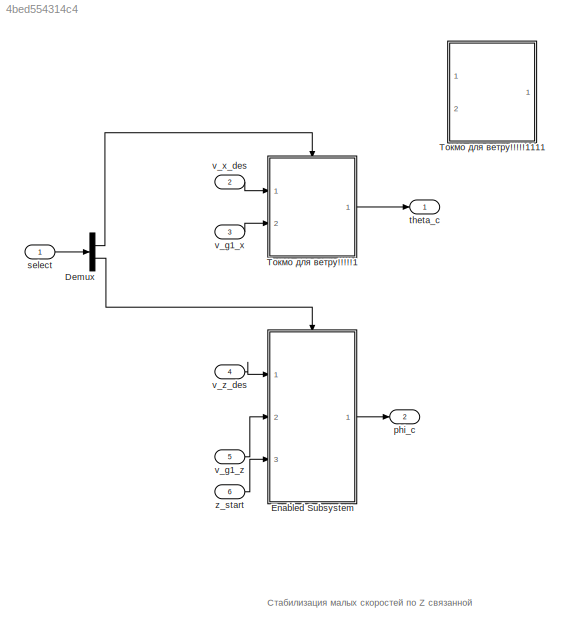
MODEL slx_4bed554314c4
KIND model
CONFIG AbsTol = auto
CONFIG EnableMultiTasking = off
CONFIG FixedStep = auto
CONFIG MaxStep = auto
CONFIG MinStep = auto
CONFIG RelTol = 1e-3
CONFIG SampleTimeConstraint = Unconstrained
CONFIG Solver = VariableStepAuto
CONFIG SolverName = VariableStepAuto
CONFIG StartTime = 0.0
CONFIG StopTime = 10.0
BLOCK [Demux] Demux
  Outputs = 2
  Ports = [1, 2]
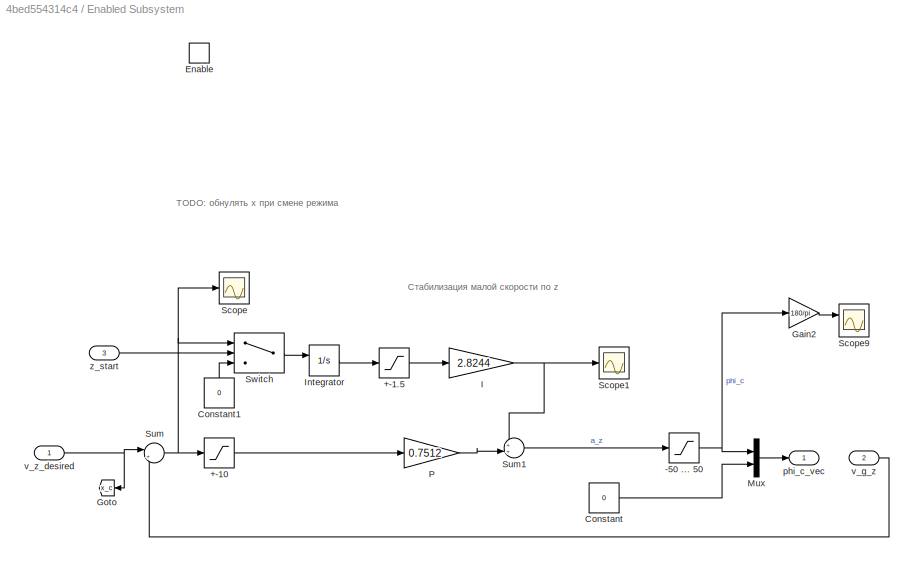
BLOCK [SubSystem] Enabled Subsystem
  Ports = [3, 1, 1]
  RequestExecContextInheritance = off
  TreatAsAtomicUnit = on
BLOCK [Saturate] Enabled Subsystem/+-1.5 
BLOCK [Saturate] Enabled Subsystem/+-10
  Commented = through
  LowerLimit = -10
  UpperLimit = 10
BLOCK [Saturate] Enabled Subsystem/-50 ... 50
  LowerLimit = deg2rad(-50)
  UpperLimit = deg2rad(50)
BLOCK [Constant] Enabled Subsystem/Constant
  Value = 0
BLOCK [Constant] Enabled Subsystem/Constant1
  NameLocation = right
  Value = 0
BLOCK [EnablePort] Enabled Subsystem/Enable
  Ports = []
BLOCK [Gain] Enabled Subsystem/Gain2
  Gain = 180/pi
BLOCK [Goto] Enabled Subsystem/Goto
  GotoTag = x_c
  NameLocation = top
BLOCK [Gain] Enabled Subsystem/I
  Gain = 2.8244
BLOCK [Integrator] Enabled Subsystem/Integrator
  ExternalReset = either
  Ports = [2, 1]
BLOCK [Mux] Enabled Subsystem/Mux
  DisplayOption = bar
  Inputs = 2
  Ports = [2, 1]
BLOCK [Gain] Enabled Subsystem/P
  Gain = 0.7512
BLOCK [Scope] Enabled Subsystem/Scope
  Floating = off
  NumInputPorts = 1
  Ports = [1]
  ScopeSpecificationString = Simulink.scopes.TimeScopeBlockCfg('CurrentConfiguration', extmgr.ConfigurationSet(extmgr.Configuration('Core','General UI',true),extmgr.Configuration('Core','Source UI',true),extmgr.Configuration('Sources','WiredSimulink',true,'DataLoggingVariableName','ScopeData3'),extmgr.Configuration('Visuals','Time Domain',true,'SerializedDisplays',{struct('MinYLimReal','-1.00000','MaxYLimReal','1.00000','YLab...<+1392ch>
BLOCK [Scope] Enabled Subsystem/Scope1
  Floating = off
  NumInputPorts = 1
  Ports = [1]
  ScopeSpecificationString = Simulink.scopes.TimeScopeBlockCfg('CurrentConfiguration', extmgr.ConfigurationSet(extmgr.Configuration('Core','General UI',true),extmgr.Configuration('Core','Source UI',true),extmgr.Configuration('Sources','WiredSimulink',true,'DataLoggingVariableName','ScopeData4'),extmgr.Configuration('Visuals','Time Domain',true,'SerializedDisplays',{struct('MinYLimReal','-0.00921','MaxYLimReal','0.08286','YLab...<+1390ch>
BLOCK [Scope] Enabled Subsystem/Scope9
  Floating = off
  NumInputPorts = 2
  Ports = [2]
  ScopeSpecificationString = Simulink.scopes.TimeScopeBlockCfg('CurrentConfiguration', extmgr.ConfigurationSet(extmgr.Configuration('Core','General UI',true),extmgr.Configuration('Core','Source UI',true),extmgr.Configuration('Sources','WiredSimulink',true,'DataLoggingVariableName','ScopeData2'),extmgr.Configuration('Visuals','Time Domain',true,'SerializedDisplays',{struct('MinYLimReal','-56.25','MaxYLimReal','6.25','YLabelRea...<+1552ch>
BLOCK [Sum] Enabled Subsystem/Sum
  Inputs = |+-
  Ports = [2, 1]
BLOCK [Sum] Enabled Subsystem/Sum1
  Inputs = ++|
  Ports = [2, 1]
BLOCK [Switch] Enabled Subsystem/Switch
  Criteria = u2 > Threshold
  InputSameDT = off
  SaturateOnIntegerOverflow = off
BLOCK [Outport] Enabled Subsystem/phi_c_vec
BLOCK [Inport] Enabled Subsystem/v_g_z
  Port = 2
BLOCK [Inport] Enabled Subsystem/v_z_desired
BLOCK [Inport] Enabled Subsystem/z_start
  Port = 3
BLOCK [Outport] phi_c
  Port = 2
BLOCK [Inport] select
BLOCK [Outport] theta_c
BLOCK [Inport] v_g1_x
  Port = 3
BLOCK [Inport] v_g1_z
  Port = 5
BLOCK [Inport] v_x_des
  Port = 2
BLOCK [Inport] v_z_des
  Port = 4
BLOCK [Inport] z_start
  OutDataTypeStr = boolean
  Port = 6
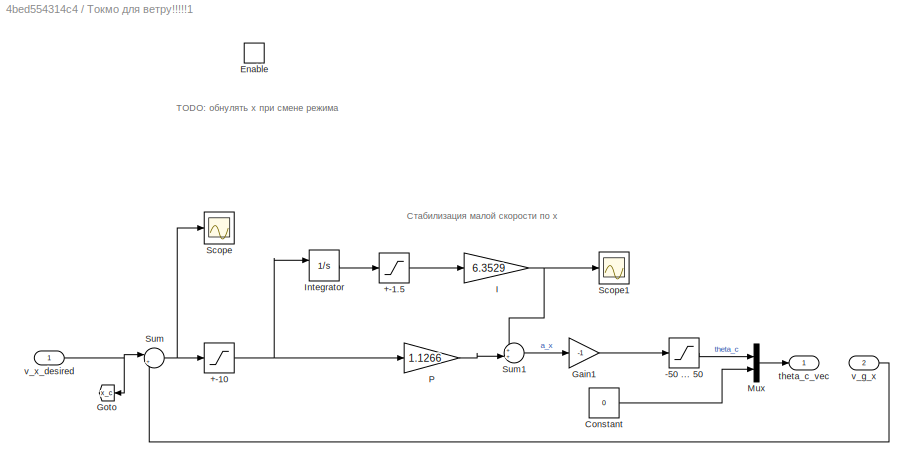
BLOCK [SubSystem] Токмо для ветру!!!!!1
  Ports = [2, 1, 1]
  RequestExecContextInheritance = off
  TreatAsAtomicUnit = on
BLOCK [Saturate] Токмо для ветру!!!!!1/+-1.5 
BLOCK [Saturate] Токмо для ветру!!!!!1/+-10
  Commented = through
  LowerLimit = -10
  UpperLimit = 10
BLOCK [Saturate] Токмо для ветру!!!!!1/-50 ... 50
  LowerLimit = deg2rad(-50)
  UpperLimit = deg2rad(50)
BLOCK [Constant] Токмо для ветру!!!!!1/Constant
  Value = 0
BLOCK [EnablePort] Токмо для ветру!!!!!1/Enable
  Ports = []
BLOCK [Gain] Токмо для ветру!!!!!1/Gain1
  Gain = -1
BLOCK [Goto] Токмо для ветру!!!!!1/Goto
  GotoTag = x_c
  NameLocation = top
BLOCK [Gain] Токмо для ветру!!!!!1/I
  Gain = 6.3529
BLOCK [Integrator] Токмо для ветру!!!!!1/Integrator
  ExternalReset = either
  Ports = [2, 1]
BLOCK [Mux] Токмо для ветру!!!!!1/Mux
  DisplayOption = bar
  Inputs = 2
  Ports = [2, 1]
BLOCK [Gain] Токмо для ветру!!!!!1/P
  Gain = 1.1266
BLOCK [Scope] Токмо для ветру!!!!!1/Scope
  Floating = off
  NumInputPorts = 1
  Ports = [1]
  ScopeSpecificationString = Simulink.scopes.TimeScopeBlockCfg('CurrentConfiguration', extmgr.ConfigurationSet(extmgr.Configuration('Core','General UI',true),extmgr.Configuration('Core','Source UI',true),extmgr.Configuration('Sources','WiredSimulink',true,'DataLoggingVariableName','ScopeData1'),extmgr.Configuration('Visuals','Time Domain',true,'SerializedDisplays',{struct('MinYLimReal','-4.9641','MaxYLimReal','6.84423','YLabe...<+1403ch>
BLOCK [Scope] Токмо для ветру!!!!!1/Scope1
  Floating = off
  NumInputPorts = 1
  Ports = [1]
  ScopeSpecificationString = Simulink.scopes.TimeScopeBlockCfg('CurrentConfiguration', extmgr.ConfigurationSet(extmgr.Configuration('Core','General UI',true),extmgr.Configuration('Core','Source UI',true),extmgr.Configuration('Sources','WiredSimulink',true,'DataLoggingVariableName','ScopeData5'),extmgr.Configuration('Visuals','Time Domain',true,'SerializedDisplays',{struct('MinYLimReal','-3.97056','MaxYLimReal','3.97056','YLab...<+1390ch>
BLOCK [Sum] Токмо для ветру!!!!!1/Sum
  Inputs = |+-
  Ports = [2, 1]
BLOCK [Sum] Токмо для ветру!!!!!1/Sum1
  Inputs = ++|
  Ports = [2, 1]
BLOCK [Outport] Токмо для ветру!!!!!1/theta_c_vec
BLOCK [Inport] Токмо для ветру!!!!!1/v_g_x
  Port = 2
BLOCK [Inport] Токмо для ветру!!!!!1/v_x_desired
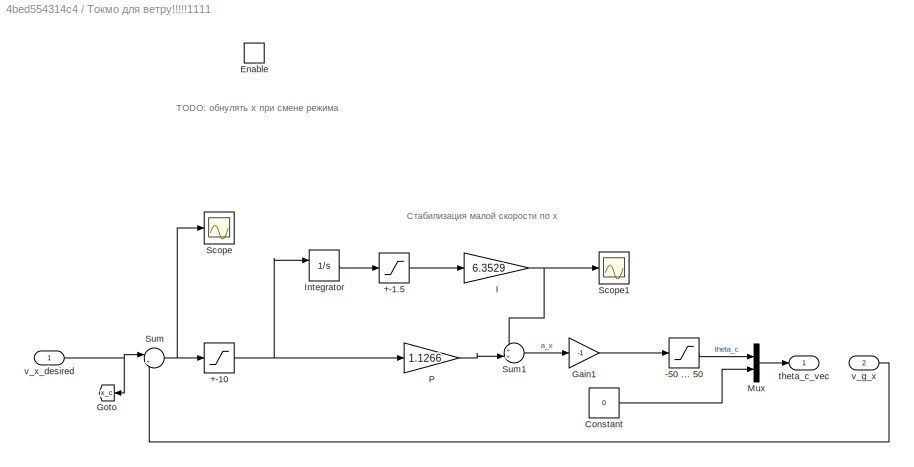
BLOCK [SubSystem] Токмо для ветру!!!!!1111
  Ports = [2, 1, 1]
  RequestExecContextInheritance = off
  TreatAsAtomicUnit = on
BLOCK [Saturate] Токмо для ветру!!!!!1111/+-1.5 
BLOCK [Saturate] Токмо для ветру!!!!!1111/+-10
  Commented = through
  LowerLimit = -10
  UpperLimit = 10
BLOCK [Saturate] Токмо для ветру!!!!!1111/-50 ... 50
  LowerLimit = deg2rad(-50)
  UpperLimit = deg2rad(50)
BLOCK [Constant] Токмо для ветру!!!!!1111/Constant
  Value = 0
BLOCK [EnablePort] Токмо для ветру!!!!!1111/Enable
  Ports = []
BLOCK [Gain] Токмо для ветру!!!!!1111/Gain1
  Gain = -1
BLOCK [Goto] Токмо для ветру!!!!!1111/Goto
  GotoTag = x_c
  NameLocation = top
BLOCK [Gain] Токмо для ветру!!!!!1111/I
  Gain = 6.3529
BLOCK [Integrator] Токмо для ветру!!!!!1111/Integrator
  ExternalReset = either
  Ports = [2, 1]
BLOCK [Mux] Токмо для ветру!!!!!1111/Mux
  DisplayOption = bar
  Inputs = 2
  Ports = [2, 1]
BLOCK [Gain] Токмо для ветру!!!!!1111/P
  Gain = 1.1266
BLOCK [Scope] Токмо для ветру!!!!!1111/Scope
  Floating = off
  NumInputPorts = 1
  Ports = [1]
  ScopeSpecificationString = Simulink.scopes.TimeScopeBlockCfg('CurrentConfiguration', extmgr.ConfigurationSet(extmgr.Configuration('Core','General UI',true),extmgr.Configuration('Core','Source UI',true),extmgr.Configuration('Sources','WiredSimulink',true,'DataLoggingVariableName','ScopeData1'),extmgr.Configuration('Visuals','Time Domain',true,'SerializedDisplays',{struct('MinYLimReal','-4.9641','MaxYLimReal','6.84423','YLabe...<+1403ch>
BLOCK [Scope] Токмо для ветру!!!!!1111/Scope1
  Floating = off
  NumInputPorts = 1
  Ports = [1]
  ScopeSpecificationString = Simulink.scopes.TimeScopeBlockCfg('CurrentConfiguration', extmgr.ConfigurationSet(extmgr.Configuration('Core','General UI',true),extmgr.Configuration('Core','Source UI',true),extmgr.Configuration('Sources','WiredSimulink',true,'DataLoggingVariableName','ScopeData5'),extmgr.Configuration('Visuals','Time Domain',true,'SerializedDisplays',{struct('MinYLimReal','-3.97056','MaxYLimReal','3.97056','YLab...<+1390ch>
BLOCK [Sum] Токмо для ветру!!!!!1111/Sum
  Inputs = |+-
  Ports = [2, 1]
BLOCK [Sum] Токмо для ветру!!!!!1111/Sum1
  Inputs = ++|
  Ports = [2, 1]
BLOCK [Outport] Токмо для ветру!!!!!1111/theta_c_vec
BLOCK [Inport] Токмо для ветру!!!!!1111/v_g_x
  Port = 2
BLOCK [Inport] Токмо для ветру!!!!!1111/v_x_desired
ANNOTATION (root): Стабилизация малых скоростей по Z связанной
ANNOTATION Enabled Subsystem: TODO: обнулять x при смене режима
ANNOTATION Enabled Subsystem: Стабилизация малой скорости по z
ANNOTATION Токмо для ветру!!!!!1: TODO: обнулять x при смене режима
ANNOTATION Токмо для ветру!!!!!1: Стабилизация малой скорости по х
ANNOTATION Токмо для ветру!!!!!1111: TODO: обнулять x при смене режима
ANNOTATION Токмо для ветру!!!!!1111: Стабилизация малой скорости по х
LINE Demux:1 -> Токмо для ветру!!!!!1:enable
LINE Demux:2 -> Enabled Subsystem:enable
LINE Enabled Subsystem/+-1.5 :1 -> Enabled Subsystem/I:1
LINE Enabled Subsystem/+-10:1 -> Enabled Subsystem/P:1
NET Enabled Subsystem/-50 ... 50:1 -> Enabled Subsystem/Gain2:1, Enabled Subsystem/Mux:1
LINE Enabled Subsystem/Constant1:1 -> Enabled Subsystem/Switch:3
LINE Enabled Subsystem/Constant:1 -> Enabled Subsystem/Mux:2
LINE Enabled Subsystem/Gain2:1 -> Enabled Subsystem/Scope9:1
NET Enabled Subsystem/I:1 -> Enabled Subsystem/Scope1:1, Enabled Subsystem/Sum1:1
LINE Enabled Subsystem/Integrator:1 -> Enabled Subsystem/+-1.5 :1
LINE Enabled Subsystem/Mux:1 -> Enabled Subsystem/phi_c_vec:1
LINE Enabled Subsystem/P:1 -> Enabled Subsystem/Sum1:2
LINE Enabled Subsystem/Sum1:1 -> Enabled Subsystem/-50 ... 50:1
NET Enabled Subsystem/Sum:1 -> Enabled Subsystem/+-10:1, Enabled Subsystem/Scope:1, Enabled Subsystem/Switch:1
LINE Enabled Subsystem/Switch:1 -> Enabled Subsystem/Integrator:1
LINE Enabled Subsystem/v_g_z:1 -> Enabled Subsystem/Sum:2
NET Enabled Subsystem/v_z_desired:1 -> Enabled Subsystem/Goto:1, Enabled Subsystem/Sum:1
LINE Enabled Subsystem/z_start:1 -> Enabled Subsystem/Switch:2
LINE Enabled Subsystem:1 -> phi_c:1
LINE select:1 -> Demux:1
LINE v_g1_x:1 -> Токмо для ветру!!!!!1:2
LINE v_g1_z:1 -> Enabled Subsystem:2
LINE v_x_des:1 -> Токмо для ветру!!!!!1:1
LINE v_z_des:1 -> Enabled Subsystem:1
LINE z_start:1 -> Enabled Subsystem:3
LINE Токмо для ветру!!!!!1/+-1.5 :1 -> Токмо для ветру!!!!!1/I:1
NET Токмо для ветру!!!!!1/+-10:1 -> Токмо для ветру!!!!!1/Integrator:1, Токмо для ветру!!!!!1/P:1
LINE Токмо для ветру!!!!!1/-50 ... 50:1 -> Токмо для ветру!!!!!1/Mux:1
LINE Токмо для ветру!!!!!1/Constant:1 -> Токмо для ветру!!!!!1/Mux:2
LINE Токмо для ветру!!!!!1/Gain1:1 -> Токмо для ветру!!!!!1/-50 ... 50:1
NET Токмо для ветру!!!!!1/I:1 -> Токмо для ветру!!!!!1/Scope1:1, Токмо для ветру!!!!!1/Sum1:1
LINE Токмо для ветру!!!!!1/Integrator:1 -> Токмо для ветру!!!!!1/+-1.5 :1
LINE Токмо для ветру!!!!!1/Mux:1 -> Токмо для ветру!!!!!1/theta_c_vec:1
LINE Токмо для ветру!!!!!1/P:1 -> Токмо для ветру!!!!!1/Sum1:2
LINE Токмо для ветру!!!!!1/Sum1:1 -> Токмо для ветру!!!!!1/Gain1:1
NET Токмо для ветру!!!!!1/Sum:1 -> Токмо для ветру!!!!!1/+-10:1, Токмо для ветру!!!!!1/Scope:1
LINE Токмо для ветру!!!!!1/v_g_x:1 -> Токмо для ветру!!!!!1/Sum:2
NET Токмо для ветру!!!!!1/v_x_desired:1 -> Токмо для ветру!!!!!1/Goto:1, Токмо для ветру!!!!!1/Sum:1
LINE Токмо для ветру!!!!!1111/+-1.5 :1 -> Токмо для ветру!!!!!1111/I:1
NET Токмо для ветру!!!!!1111/+-10:1 -> Токмо для ветру!!!!!1111/Integrator:1, Токмо для ветру!!!!!1111/P:1
LINE Токмо для ветру!!!!!1111/-50 ... 50:1 -> Токмо для ветру!!!!!1111/Mux:1
LINE Токмо для ветру!!!!!1111/Constant:1 -> Токмо для ветру!!!!!1111/Mux:2
LINE Токмо для ветру!!!!!1111/Gain1:1 -> Токмо для ветру!!!!!1111/-50 ... 50:1
NET Токмо для ветру!!!!!1111/I:1 -> Токмо для ветру!!!!!1111/Scope1:1, Токмо для ветру!!!!!1111/Sum1:1
LINE Токмо для ветру!!!!!1111/Integrator:1 -> Токмо для ветру!!!!!1111/+-1.5 :1
LINE Токмо для ветру!!!!!1111/Mux:1 -> Токмо для ветру!!!!!1111/theta_c_vec:1
LINE Токмо для ветру!!!!!1111/P:1 -> Токмо для ветру!!!!!1111/Sum1:2
LINE Токмо для ветру!!!!!1111/Sum1:1 -> Токмо для ветру!!!!!1111/Gain1:1
NET Токмо для ветру!!!!!1111/Sum:1 -> Токмо для ветру!!!!!1111/+-10:1, Токмо для ветру!!!!!1111/Scope:1
LINE Токмо для ветру!!!!!1111/v_g_x:1 -> Токмо для ветру!!!!!1111/Sum:2
NET Токмо для ветру!!!!!1111/v_x_desired:1 -> Токмо для ветру!!!!!1111/Goto:1, Токмо для ветру!!!!!1111/Sum:1
LINE Токмо для ветру!!!!!1:1 -> theta_c:1
note: NET lines group one-source signal fan-out (src -> all destinations, sorted); 1:1 wires keep LINE
